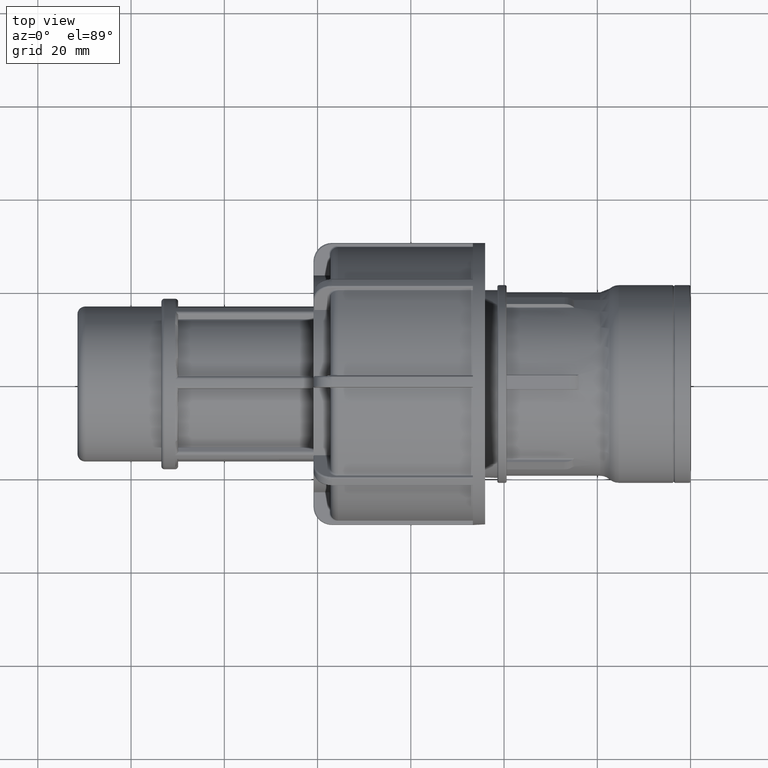
[diagram: clean part render]
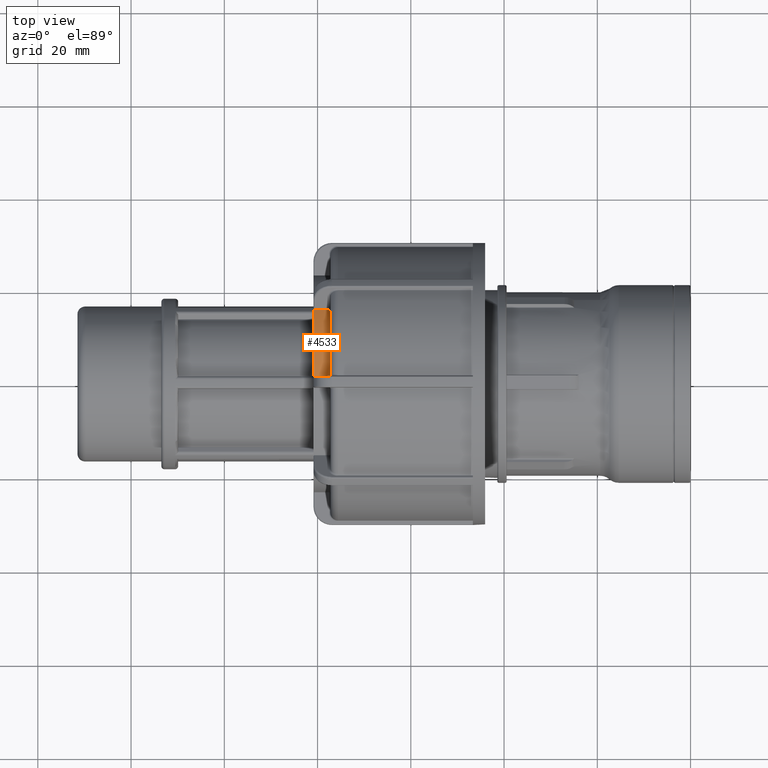
[diagram: same view with one face highlighted and labeled with its STEP entity id]
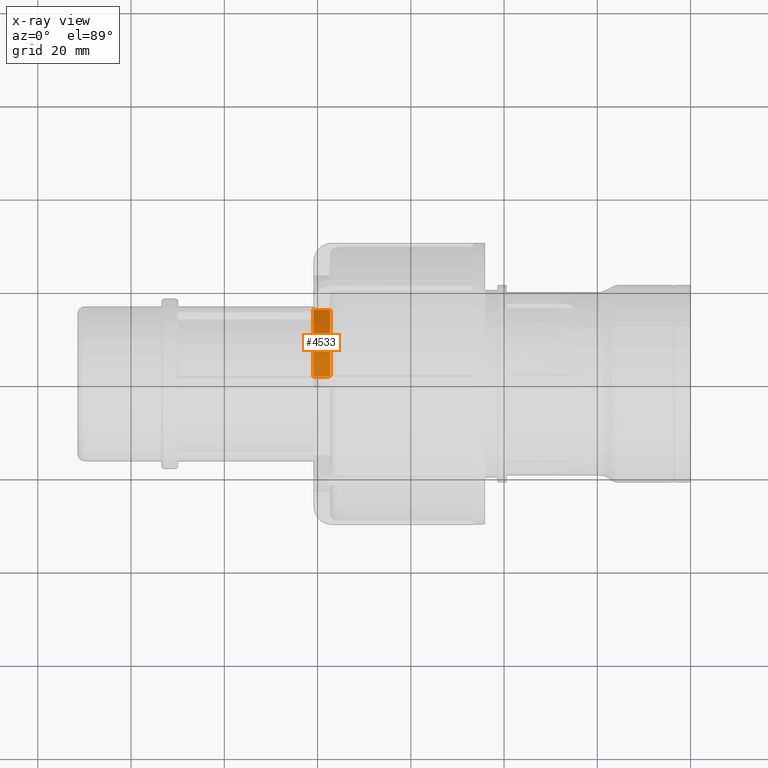
[diagram: x-ray of the same camera — body ghosted, the highlighted face saturated]
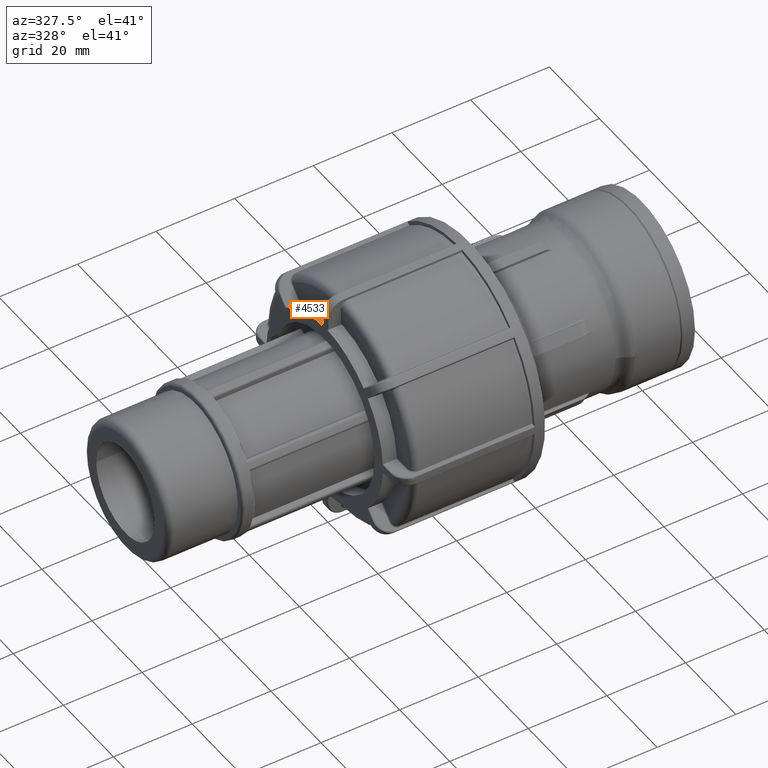
[diagram: same view with one face highlighted and labeled with its STEP entity id]
A machine part, top view. The second image highlights one B-rep face of the part: STEP entity #4533.
The next image is the same camera in x-ray: the body ghosted, the highlighted face saturated — about 0% of this face is hidden behind the body in this view.
A second angle (auxiliary view) of the same face is appended — the face is thin or edge-on in the first view.
In plain terms, the highlighted cylindrical surface (partial cylindrical patch) has radius 23.2743 mm, axis along (1, 0, 0).
Its self-contained STEP definition (entity closure, byte-faithful):
#387=LINE('',#8886,#666);
#388=LINE('',#8897,#667);
#666=VECTOR('',#6050,2.99499999999998);
#667=VECTOR('',#6051,2.99499999999998);
#800=CYLINDRICAL_SURFACE('',#4973,23.2743);
#1018=FACE_OUTER_BOUND('',#1302,.T.);
#1302=EDGE_LOOP('',(#3910,#3911,#3912,#3913,#3914,#3915,#3916,#3917));
#1520=B_SPLINE_CURVE_WITH_KNOTS('',3,(#8691,#8692,#8693,#8694,#8695,#8696,
#8697,#8698,#8699,#8700),.UNSPECIFIED.,.F.,.F.,(4,2,2,2,4),(-0.0456019326035365,
-0.0341956466644442,-0.0227893607253519,-0.011394680362676,0.),
 .UNSPECIFIED.);
#1527=B_SPLINE_CURVE_WITH_KNOTS('',3,(#8812,#8813,#8814,#8815,#8816,#8817,
#8818,#8819,#8820,#8821),.UNSPECIFIED.,.F.,.F.,(4,2,2,2,4),(0.182511764289442,
0.193905038307629,0.205298312325816,0.216714870950889,0.228131429575962),
 .UNSPECIFIED.);
#1530=B_SPLINE_CURVE_WITH_KNOTS('',3,(#8875,#8876,#8877,#8878,#8879,#8880,
#8881,#8882,#8883,#8884),.UNSPECIFIED.,.F.,.F.,(4,2,2,2,4),(0.136892097224412,
0.148308655849485,0.159725214474559,0.171118488492745,0.182511762510931),
 .UNSPECIFIED.);
#1531=B_SPLINE_CURVE_WITH_KNOTS('',3,(#8887,#8888,#8889,#8890,#8891,#8892,
#8893,#8894,#8895,#8896),.UNSPECIFIED.,.F.,.F.,(4,2,2,2,4),(0.,0.0113946803626759,
0.0227893607253519,0.0341956466644441,0.0456019326035362),.UNSPECIFIED.);
#1662=CIRCLE('',#4812,23.2743);
#1750=CIRCLE('',#4974,23.2743);
#2045=VERTEX_POINT('',#7462);
#2046=VERTEX_POINT('',#7464);
#2182=VERTEX_POINT('',#8689);
#2191=VERTEX_POINT('',#8810);
#2192=VERTEX_POINT('',#8811);
#2199=VERTEX_POINT('',#8872);
#2200=VERTEX_POINT('',#8874);
#2201=VERTEX_POINT('',#8885);
#2562=EDGE_CURVE('',#2046,#2045,#1662,.T.);
#2788=EDGE_CURVE('',#2182,#2045,#1520,.F.);
#2805=EDGE_CURVE('',#2191,#2192,#1527,.T.);
#2815=EDGE_CURVE('',#2199,#2192,#1750,.T.);
#2816=EDGE_CURVE('',#2199,#2200,#1530,.T.);
#2817=EDGE_CURVE('',#2200,#2201,#387,.T.);
#2818=EDGE_CURVE('',#2046,#2201,#1531,.F.);
#2819=EDGE_CURVE('',#2182,#2191,#388,.T.);
#3910=ORIENTED_EDGE('',*,*,#2805,.T.);
#3911=ORIENTED_EDGE('',*,*,#2815,.F.);
#3912=ORIENTED_EDGE('',*,*,#2816,.T.);
#3913=ORIENTED_EDGE('',*,*,#2817,.T.);
#3914=ORIENTED_EDGE('',*,*,#2818,.F.);
#3915=ORIENTED_EDGE('',*,*,#2562,.T.);
#3916=ORIENTED_EDGE('',*,*,#2788,.F.);
#3917=ORIENTED_EDGE('',*,*,#2819,.T.);
#4533=ADVANCED_FACE('',(#1018),#800,.T.);
#4812=AXIS2_PLACEMENT_3D('',#7465,#5626,#5627);
#4973=AXIS2_PLACEMENT_3D('',#8871,#6046,#6047);
#4974=AXIS2_PLACEMENT_3D('',#8873,#6048,#6049);
#5626=DIRECTION('center_axis',(1.,0.,0.));
#5627=DIRECTION('ref_axis',(0.,0.,-1.));
#6046=DIRECTION('center_axis',(1.,0.,0.));
#6047=DIRECTION('ref_axis',(0.,1.,0.));
#6048=DIRECTION('center_axis',(1.,0.,0.));
#6049=DIRECTION('ref_axis',(0.,0.,-1.));
#6050=DIRECTION('',(-1.,0.,0.));
#6051=DIRECTION('',(1.,0.,0.));
#7462=CARTESIAN_POINT('',(-80.8725,0.907500000000011,23.2566008745904));
#7464=CARTESIAN_POINT('',(-80.8725,15.8032007818451,17.0865995896987));
#7465=CARTESIAN_POINT('Origin',(-80.8725,0.,0.));
#8689=CARTESIAN_POINT('',(-80.57,1.21000000000001,23.2428255702701));
#8691=CARTESIAN_POINT('Ctrl Pts',(-80.8725,0.907500000000011,23.2566008745904));
#8692=CARTESIAN_POINT('Ctrl Pts',(-80.8725,0.945492039795969,23.2551183803815));
#8693=CARTESIAN_POINT('Ctrl Pts',(-80.8649058906014,0.986013641052416,23.2534343581618));
#8694=CARTESIAN_POINT('Ctrl Pts',(-80.8340217872633,1.06055676058985,23.2501537996473));
#8695=CARTESIAN_POINT('Ctrl Pts',(-80.8107317891745,1.09457851073961,23.2485625732495));
#8696=CARTESIAN_POINT('Ctrl Pts',(-80.7570099228712,1.14827897636452,23.2459720760326));
#8697=CARTESIAN_POINT('Ctrl Pts',(-80.7230060657535,1.17154840881347,23.2448005698471));
#8698=CARTESIAN_POINT('Ctrl Pts',(-80.6484923621774,1.20240908318884,23.2432246386532));
#8699=CARTESIAN_POINT('Ctrl Pts',(-80.6079822678756,1.21000000000001,23.2428255702701));
#8700=CARTESIAN_POINT('Ctrl Pts',(-80.57,1.21000000000001,23.2428255702701));
#8810=CARTESIAN_POINT('',(-77.575,1.21000000000001,23.2428255702701));
#8811=CARTESIAN_POINT('',(-77.2725,1.51250000000001,23.2251024591927));
#8812=CARTESIAN_POINT('Ctrl Pts',(-77.575,1.21000000000001,23.2428255702701));
#8813=CARTESIAN_POINT('Ctrl Pts',(-77.5370224199394,1.21000000000001,23.2428255702701));
#8814=CARTESIAN_POINT('Ctrl Pts',(-77.4965168711742,1.21758925534971,23.2424343719543));
#8815=CARTESIAN_POINT('Ctrl Pts',(-77.4220123971191,1.24844178275423,23.2407975819354));
#8816=CARTESIAN_POINT('Ctrl Pts',(-77.3880134742325,1.27170477792062,23.2395466659966));
#8817=CARTESIAN_POINT('Ctrl Pts',(-77.3342742289143,1.32540832448231,23.2365457417816));
#8818=CARTESIAN_POINT('Ctrl Pts',(-77.3109744983499,1.35944760726171,23.2345935507479));
#8819=CARTESIAN_POINT('Ctrl Pts',(-77.2800877245088,1.43400636862134,23.2301110845408));
#8820=CARTESIAN_POINT('Ctrl Pts',(-77.2725,1.47452524618734,23.227575508138));
#8821=CARTESIAN_POINT('Ctrl Pts',(-77.2725,1.51250000000001,23.2251024591927));
#8871=CARTESIAN_POINT('Origin',(-79.0725,0.,0.));
#8872=CARTESIAN_POINT('',(-77.2725,15.3531284361029,17.4921264491922));
#8873=CARTESIAN_POINT('Origin',(-77.2725,0.,0.));
#8874=CARTESIAN_POINT('',(-77.575,15.5795603694383,17.2907587799098));
#8875=CARTESIAN_POINT('Ctrl Pts',(-77.2725,15.3531284361029,17.4921264491922));
#8876=CARTESIAN_POINT('Ctrl Pts',(-77.2725,15.3817293517172,17.4670229529368));
#8877=CARTESIAN_POINT('Ctrl Pts',(-77.2800877245088,15.4121734480788,17.4401647031124));
#8878=CARTESIAN_POINT('Ctrl Pts',(-77.3109744983499,15.4680640360845,17.3906132796096));
#8879=CARTESIAN_POINT('Ctrl Pts',(-77.3342742289143,15.4935138512826,17.3679242794477));
#8880=CARTESIAN_POINT('Ctrl Pts',(-77.3880134742325,15.5336099670925,17.3320721113624));
#8881=CARTESIAN_POINT('Ctrl Pts',(-77.4220123971191,15.5509439198683,17.3165072208725));
#8882=CARTESIAN_POINT('Ctrl Pts',(-77.4965168711742,15.5739173365345,17.2958485748498));
#8883=CARTESIAN_POINT('Ctrl Pts',(-77.5370224199394,15.5795603694383,17.2907587799098));
#8884=CARTESIAN_POINT('Ctrl Pts',(-77.575,15.5795603694383,17.2907587799098));
#8885=CARTESIAN_POINT('',(-80.57,15.5795603694383,17.2907587799098));
#8886=CARTESIAN_POINT('',(-79.0725,15.5795603694383,17.2907587799098));
#8887=CARTESIAN_POINT('Ctrl Pts',(-80.57,15.5795603694383,17.2907587799098));
#8888=CARTESIAN_POINT('Ctrl Pts',(-80.6079822678756,15.5795603694383,17.2907587799098));
#8889=CARTESIAN_POINT('Ctrl Pts',(-80.6484923621774,15.5852101421508,17.2856733751171));
#8890=CARTESIAN_POINT('Ctrl Pts',(-80.7230060657535,15.6081462859075,17.2649659346281));
#8891=CARTESIAN_POINT('Ctrl Pts',(-80.7570099228712,15.6254286393545,17.249340341117));
#8892=CARTESIAN_POINT('Ctrl Pts',(-80.8107317891745,15.6652323608995,17.2132001358695));
#8893=CARTESIAN_POINT('Ctrl Pts',(-80.8340217872633,15.6904145381145,17.1902682926071));
#8894=CARTESIAN_POINT('Ctrl Pts',(-80.8649058906014,15.7454441886019,17.1398780524631));
#8895=CARTESIAN_POINT('Ctrl Pts',(-80.8725,15.7752880711661,17.1124157369613));
#8896=CARTESIAN_POINT('Ctrl Pts',(-80.8725,15.8032007818451,17.0865995896987));
#8897=CARTESIAN_POINT('',(-79.0725,1.21000000000001,23.2428255702701));